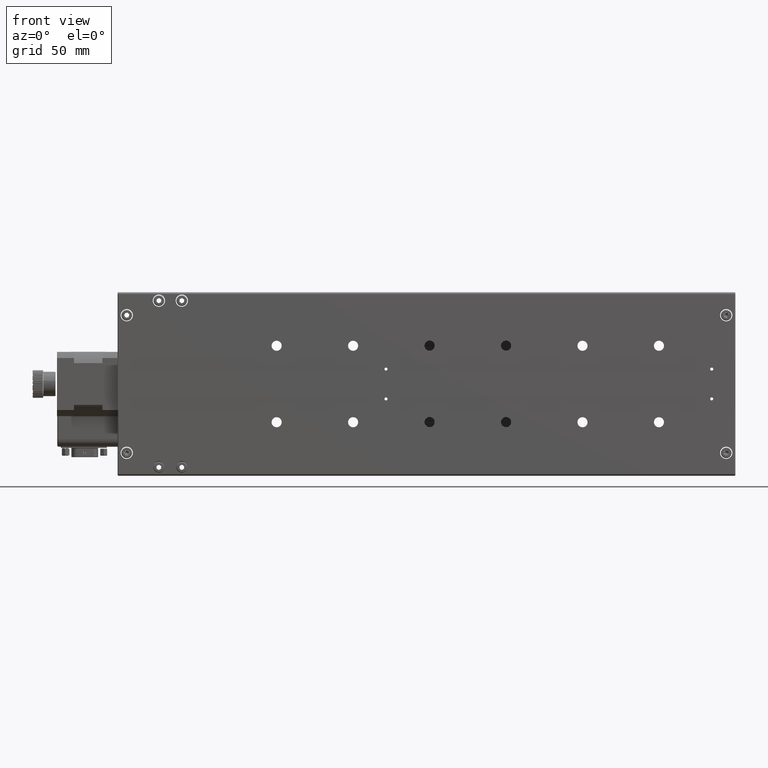
[diagram: clean part render]
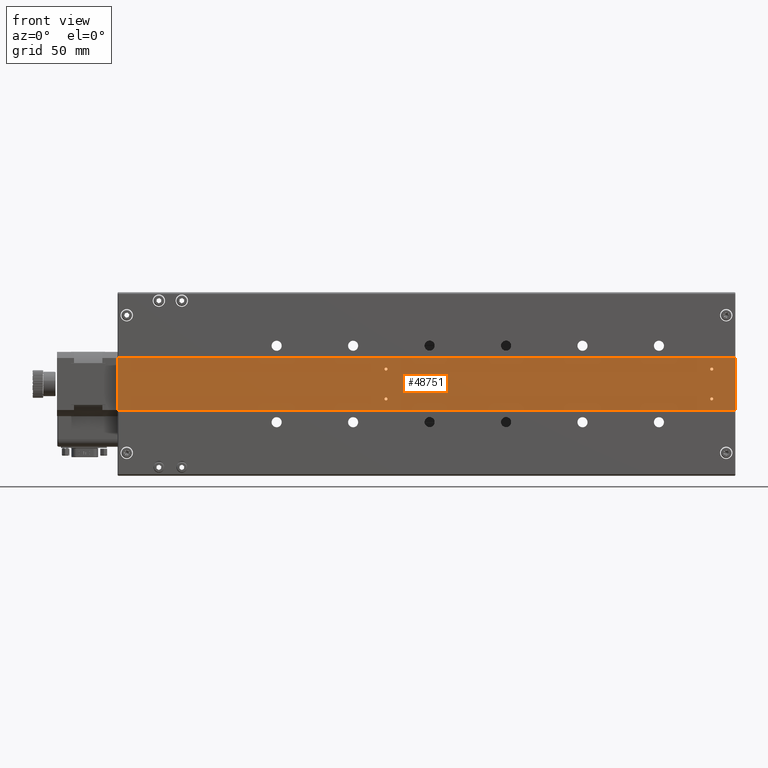
[diagram: same view with one face highlighted and labeled with its STEP entity id]
A machine part, front view. The second image highlights one B-rep face of the part: STEP entity #48751.
In plain terms, the highlighted planar face has unit normal (0, 1, -0).
Its self-contained STEP definition (entity closure, byte-faithful):
#1112 = ORIENTED_EDGE ( 'NONE', *, *, #21689, .F. ) ;
#1224 = CARTESIAN_POINT ( 'NONE',  ( -791.9554856032648300, 0.3000000000003260600, -332.9134800466685500 ) ) ;
#1455 = AXIS2_PLACEMENT_3D ( 'NONE', #25855, #49783, #49923 ) ;
#1866 = CIRCLE ( 'NONE', #36390, 0.9999999999998898700 ) ;
#1972 = DIRECTION ( 'NONE',  ( 1.056547006598531300E-014, 1.224646799147353200E-016, 1.000000000000000000 ) ) ;
#2751 = AXIS2_PLACEMENT_3D ( 'NONE', #9234, #9070, #20765 ) ;
#3690 = VERTEX_POINT ( 'NONE', #14804 ) ;
#5586 = EDGE_CURVE ( 'NONE', #30829, #44234, #15454, .T. ) ;
#5720 = CIRCLE ( 'NONE', #11338, 0.9999999999998898700 ) ;
#6041 = FACE_OUTER_BOUND ( 'NONE', #14213, .T. ) ;
#6887 = ORIENTED_EDGE ( 'NONE', *, *, #24893, .F. ) ;
#7384 = DIRECTION ( 'NONE',  ( -1.000000000000000000, 0.0000000000000000000, 0.0000000000000000000 ) ) ;
#7772 = CARTESIAN_POINT ( 'NONE',  ( -1019.255485603264900, 0.3000000000003260600, -340.1634800466660500 ) ) ;
#7884 = FACE_BOUND ( 'NONE', #14803, .T. ) ;
#8070 = VERTEX_POINT ( 'NONE', #33244 ) ;
#8585 = DIRECTION ( 'NONE',  ( -1.401298464324817100E-045, -1.000000000000000000, 1.224646799147353200E-016 ) ) ;
#8604 = EDGE_CURVE ( 'NONE', #21271, #8070, #30744, .T. ) ;
#8619 = CIRCLE ( 'NONE', #11631, 1.000000000000000900 ) ;
#9070 = DIRECTION ( 'NONE',  ( -1.401298464324817100E-045, -1.000000000000000000, 1.224646799147353200E-016 ) ) ;
#9234 = CARTESIAN_POINT ( 'NONE',  ( -807.2554856032647900, 0.3000000000003260600, -340.1634800466683300 ) ) ;
#9618 = EDGE_CURVE ( 'NONE', #12435, #28316, #28185, .T. ) ;
#10171 = CARTESIAN_POINT ( 'NONE',  ( -791.9554856032651700, 0.3000000000003225600, -366.9134800466685000 ) ) ;
#10374 = EDGE_CURVE ( 'NONE', #20478, #17569, #10912, .T. ) ;
#10912 = LINE ( 'NONE', #19762, #34865 ) ;
#11338 = AXIS2_PLACEMENT_3D ( 'NONE', #24412, #8585, #36110 ) ;
#11375 = VERTEX_POINT ( 'NONE', #39677 ) ;
#11631 = AXIS2_PLACEMENT_3D ( 'NONE', #27144, #39347, #7384 ) ;
#11755 = AXIS2_PLACEMENT_3D ( 'NONE', #37036, #17628, #40661 ) ;
#11976 = VERTEX_POINT ( 'NONE', #10171 ) ;
#12002 = EDGE_CURVE ( 'NONE', #44234, #30829, #45192, .T. ) ;
#12435 = VERTEX_POINT ( 'NONE', #27572 ) ;
#12853 = DIRECTION ( 'NONE',  ( -1.056547006598531300E-014, -1.224646799147353200E-016, -1.000000000000000000 ) ) ;
#14213 = EDGE_LOOP ( 'NONE', ( #46484, #47107, #33162, #40847 ) ) ;
#14803 = EDGE_LOOP ( 'NONE', ( #1112, #15655 ) ) ;
#14804 = CARTESIAN_POINT ( 'NONE',  ( -1019.255485603264900, 0.3000000000003225600, -359.6634800466661100 ) ) ;
#15093 = VECTOR ( 'NONE', #1972, 1000.000000000000000 ) ;
#15118 = DIRECTION ( 'NONE',  ( -1.000000000000000000, 0.0000000000000000000, 0.0000000000000000000 ) ) ;
#15454 = CIRCLE ( 'NONE', #11755, 1.000000000000000900 ) ;
#15652 = LINE ( 'NONE', #35180, #16256 ) ;
#15655 = ORIENTED_EDGE ( 'NONE', *, *, #9618, .F. ) ;
#15718 = EDGE_LOOP ( 'NONE', ( #19256, #36636 ) ) ;
#16256 = VECTOR ( 'NONE', #26975, 1000.000000000000000 ) ;
#17569 = VERTEX_POINT ( 'NONE', #49776 ) ;
#17628 = DIRECTION ( 'NONE',  ( -1.401298464324817100E-045, -1.000000000000000000, 1.224646799147353200E-016 ) ) ;
#17710 = EDGE_LOOP ( 'NONE', ( #20076, #6887 ) ) ;
#17783 = AXIS2_PLACEMENT_3D ( 'NONE', #41794, #26131, #45413 ) ;
#17975 = PLANE ( 'NONE',  #1455 ) ;
#19256 = ORIENTED_EDGE ( 'NONE', *, *, #12002, .F. ) ;
#19762 = CARTESIAN_POINT ( 'NONE',  ( -1195.755485603264800, 0.3000000000003260600, -332.9134800466642900 ) ) ;
#19842 = DIRECTION ( 'NONE',  ( -1.000000000000000000, 0.0000000000000000000, 0.0000000000000000000 ) ) ;
#20076 = ORIENTED_EDGE ( 'NONE', *, *, #23195, .F. ) ;
#20478 = VERTEX_POINT ( 'NONE', #1224 ) ;
#20765 = DIRECTION ( 'NONE',  ( -1.000000000000000000, 0.0000000000000000000, 0.0000000000000000000 ) ) ;
#20889 = CARTESIAN_POINT ( 'NONE',  ( -1021.255485603264800, 0.3000000000003225600, -359.6634800466661100 ) ) ;
#21271 = VERTEX_POINT ( 'NONE', #7772 ) ;
#21389 = ORIENTED_EDGE ( 'NONE', *, *, #21902, .F. ) ;
#21580 = AXIS2_PLACEMENT_3D ( 'NONE', #46238, #50326, #15118 ) ;
#21689 = EDGE_CURVE ( 'NONE', #28316, #12435, #8619, .T. ) ;
#21902 = EDGE_CURVE ( 'NONE', #8070, #21271, #30159, .T. ) ;
#22440 = ORIENTED_EDGE ( 'NONE', *, *, #8604, .F. ) ;
#22670 = FACE_BOUND ( 'NONE', #40044, .T. ) ;
#23045 = DIRECTION ( 'NONE',  ( -1.401298464324817100E-045, -1.000000000000000000, 1.224646799147353200E-016 ) ) ;
#23175 = CARTESIAN_POINT ( 'NONE',  ( -808.2554856032650200, 0.3000000000003225600, -359.6634800466683800 ) ) ;
#23195 = EDGE_CURVE ( 'NONE', #41562, #3690, #5720, .T. ) ;
#24412 = CARTESIAN_POINT ( 'NONE',  ( -1020.255485603264800, 0.3000000000003225600, -359.6634800466661100 ) ) ;
#24893 = EDGE_CURVE ( 'NONE', #3690, #41562, #1866, .T. ) ;
#25855 = CARTESIAN_POINT ( 'NONE',  ( -791.7554856032646700, 0.3000000000003260600, -332.9134800466685500 ) ) ;
#26131 = DIRECTION ( 'NONE',  ( -1.401298464324817100E-045, -1.000000000000000000, 1.224646799147353200E-016 ) ) ;
#26975 = DIRECTION ( 'NONE',  ( 1.000000000000000000, -1.293896909779627600E-030, -1.056547006598531300E-014 ) ) ;
#27144 = CARTESIAN_POINT ( 'NONE',  ( -807.2554856032647900, 0.3000000000003260600, -340.1634800466683300 ) ) ;
#27572 = CARTESIAN_POINT ( 'NONE',  ( -806.2554856032647900, 0.3000000000003260600, -340.1634800466683300 ) ) ;
#28019 = LINE ( 'NONE', #36383, #32988 ) ;
#28185 = CIRCLE ( 'NONE', #2751, 1.000000000000000900 ) ;
#28316 = VERTEX_POINT ( 'NONE', #48896 ) ;
#29378 = AXIS2_PLACEMENT_3D ( 'NONE', #47335, #43915, #19842 ) ;
#29913 = CARTESIAN_POINT ( 'NONE',  ( -791.9554856032642600, 0.3000000000003312200, -289.9134800466685000 ) ) ;
#29971 = EDGE_CURVE ( 'NONE', #17569, #11375, #28019, .T. ) ;
#30159 = CIRCLE ( 'NONE', #29378, 0.9999999999998898700 ) ;
#30744 = CIRCLE ( 'NONE', #17783, 0.9999999999998898700 ) ;
#30829 = VERTEX_POINT ( 'NONE', #50696 ) ;
#32988 = VECTOR ( 'NONE', #12853, 1000.000000000000000 ) ;
#33162 = ORIENTED_EDGE ( 'NONE', *, *, #10374, .T. ) ;
#33244 = CARTESIAN_POINT ( 'NONE',  ( -1021.255485603264800, 0.3000000000003260600, -340.1634800466660500 ) ) ;
#34865 = VECTOR ( 'NONE', #39535, 1000.000000000000000 ) ;
#35180 = CARTESIAN_POINT ( 'NONE',  ( -1195.755485603265000, 0.3000000000003225600, -366.9134800466642300 ) ) ;
#36110 = DIRECTION ( 'NONE',  ( -1.000000000000000000, 0.0000000000000000000, 0.0000000000000000000 ) ) ;
#36383 = CARTESIAN_POINT ( 'NONE',  ( -1195.555485603264300, 0.3000000000003312200, -289.9134800466642300 ) ) ;
#36390 = AXIS2_PLACEMENT_3D ( 'NONE', #46599, #23045, #50517 ) ;
#36636 = ORIENTED_EDGE ( 'NONE', *, *, #5586, .F. ) ;
#36818 = FACE_BOUND ( 'NONE', #15718, .T. ) ;
#37036 = CARTESIAN_POINT ( 'NONE',  ( -807.2554856032650200, 0.3000000000003225600, -359.6634800466683800 ) ) ;
#39105 = LINE ( 'NONE', #29913, #15093 ) ;
#39347 = DIRECTION ( 'NONE',  ( -1.401298464324817100E-045, -1.000000000000000000, 1.224646799147353200E-016 ) ) ;
#39535 = DIRECTION ( 'NONE',  ( -1.000000000000000000, 1.293896909779627600E-030, 1.056547006598531300E-014 ) ) ;
#39677 = CARTESIAN_POINT ( 'NONE',  ( -1195.555485603265000, 0.3000000000003225600, -366.9134800466642300 ) ) ;
#39923 = EDGE_CURVE ( 'NONE', #11375, #11976, #15652, .T. ) ;
#40044 = EDGE_LOOP ( 'NONE', ( #21389, #22440 ) ) ;
#40661 = DIRECTION ( 'NONE',  ( -1.000000000000000000, 0.0000000000000000000, 0.0000000000000000000 ) ) ;
#40847 = ORIENTED_EDGE ( 'NONE', *, *, #29971, .T. ) ;
#41129 = FACE_BOUND ( 'NONE', #17710, .T. ) ;
#41562 = VERTEX_POINT ( 'NONE', #20889 ) ;
#41794 = CARTESIAN_POINT ( 'NONE',  ( -1020.255485603264800, 0.3000000000003260600, -340.1634800466660500 ) ) ;
#43915 = DIRECTION ( 'NONE',  ( -1.401298464324817100E-045, -1.000000000000000000, 1.224646799147353200E-016 ) ) ;
#44234 = VERTEX_POINT ( 'NONE', #23175 ) ;
#45154 = EDGE_CURVE ( 'NONE', #11976, #20478, #39105, .T. ) ;
#45192 = CIRCLE ( 'NONE', #21580, 1.000000000000000900 ) ;
#45413 = DIRECTION ( 'NONE',  ( -1.000000000000000000, 0.0000000000000000000, 0.0000000000000000000 ) ) ;
#46238 = CARTESIAN_POINT ( 'NONE',  ( -807.2554856032650200, 0.3000000000003225600, -359.6634800466683800 ) ) ;
#46484 = ORIENTED_EDGE ( 'NONE', *, *, #39923, .T. ) ;
#46599 = CARTESIAN_POINT ( 'NONE',  ( -1020.255485603264800, 0.3000000000003225600, -359.6634800466661100 ) ) ;
#47107 = ORIENTED_EDGE ( 'NONE', *, *, #45154, .T. ) ;
#47335 = CARTESIAN_POINT ( 'NONE',  ( -1020.255485603264800, 0.3000000000003260600, -340.1634800466660500 ) ) ;
#48751 = ADVANCED_FACE ( 'NONE', ( #22670, #7884, #6041, #36818, #41129 ), #17975, .F. ) ;
#48896 = CARTESIAN_POINT ( 'NONE',  ( -808.2554856032647900, 0.3000000000003260600, -340.1634800466683300 ) ) ;
#49776 = CARTESIAN_POINT ( 'NONE',  ( -1195.555485603264700, 0.3000000000003260600, -332.9134800466642900 ) ) ;
#49783 = DIRECTION ( 'NONE',  ( 1.874236696034442800E-044, 1.000000000000000000, -1.224646799147353200E-016 ) ) ;
#49923 = DIRECTION ( 'NONE',  ( -1.000000000000000000, 1.293896909779627600E-030, 1.056547006598531300E-014 ) ) ;
#50326 = DIRECTION ( 'NONE',  ( -1.401298464324817100E-045, -1.000000000000000000, 1.224646799147353200E-016 ) ) ;
#50517 = DIRECTION ( 'NONE',  ( -1.000000000000000000, 0.0000000000000000000, 0.0000000000000000000 ) ) ;
#50696 = CARTESIAN_POINT ( 'NONE',  ( -806.2554856032650200, 0.3000000000003225600, -359.6634800466683800 ) ) ;